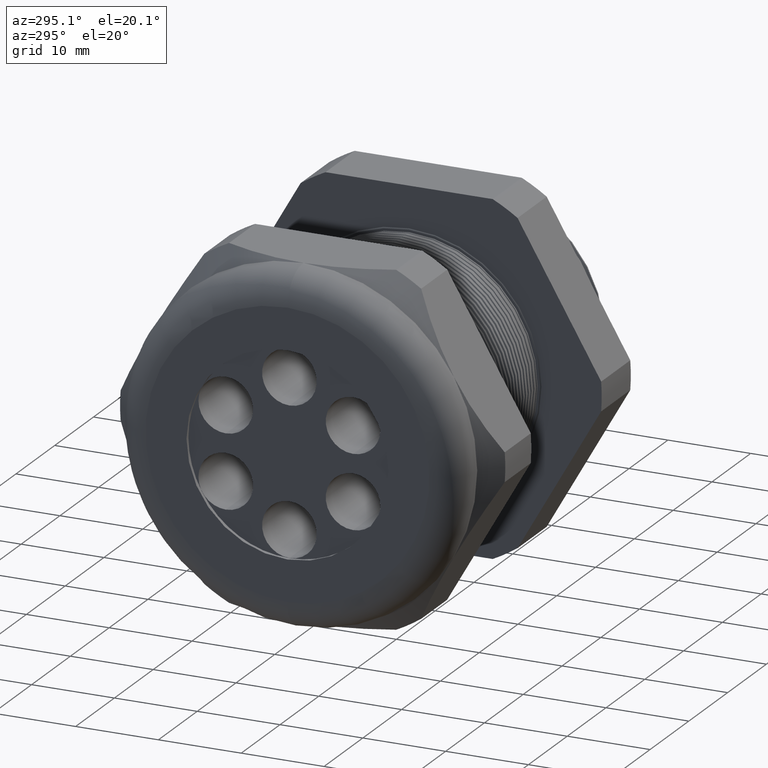
[diagram: clean part render]
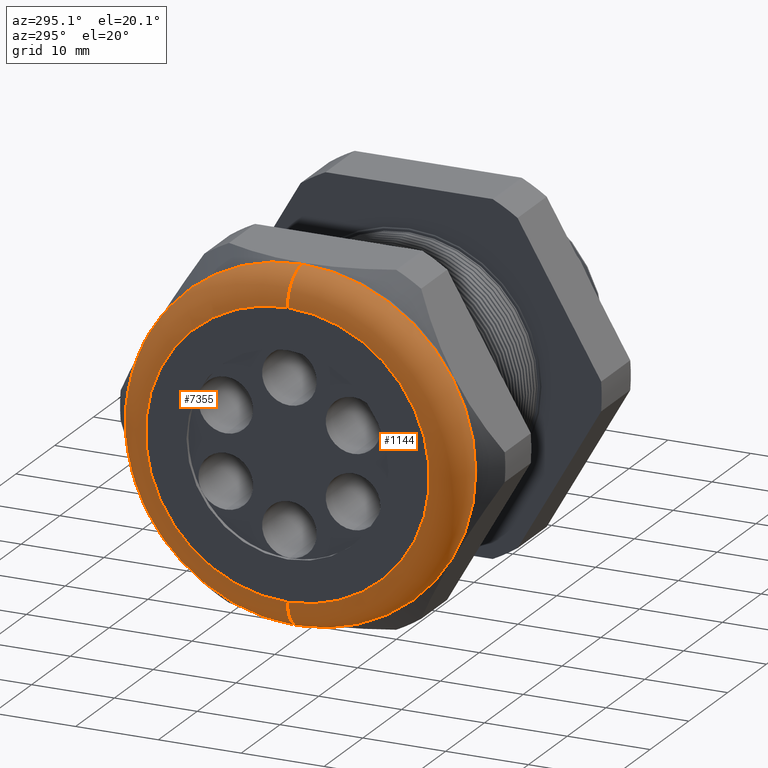
[diagram: same view with one multi-face feature highlighted, each face labeled with its STEP entity id]
A machine part, auxiliary view. The highlighted faces form ONE feature: a constant-radius fillet chain: 2 tangent blend faces with common blend radius 3.81 mm. The faces share edges in the B-rep.
Their STEP definitions:
[1] entity #7355 (Torus):
#6413 = DIRECTION ( 'NONE',  ( 0.0000000000000000000, 0.0000000000000000000, 1.000000000000000000 ) ) ;
#6414 = DIRECTION ( 'NONE',  ( -1.000000000000000000, 0.0000000000000000000, 0.0000000000000000000 ) ) ;
#6415 = CARTESIAN_POINT ( 'NONE',  ( -1.840000000000000100, 0.0000000000000000000, 0.0000000000000000000 ) ) ;
#6416 = AXIS2_PLACEMENT_3D ( 'NONE', #6415, #6414, #6413 ) ;
#6417 = CIRCLE ( 'NONE', #6416, 0.6749999999999997100 ) ;
#6418 = CARTESIAN_POINT ( 'NONE',  ( -1.840000000000000100, 0.0000000000000000000, 0.6749999999999997100 ) ) ;
#6419 = CARTESIAN_POINT ( 'NONE',  ( -1.840000000000000100, 9.184850993605146000E-017, -0.6749999999999997100 ) ) ;
#6429 = DIRECTION ( 'NONE',  ( 0.0000000000000000000, 0.0000000000000000000, 1.000000000000000000 ) ) ;
#6430 = DIRECTION ( 'NONE',  ( -1.000000000000000000, 0.0000000000000000000, 0.0000000000000000000 ) ) ;
#6431 = CARTESIAN_POINT ( 'NONE',  ( -1.689999999999999900, 0.0000000000000000000, 0.0000000000000000000 ) ) ;
#6432 = AXIS2_PLACEMENT_3D ( 'NONE', #6431, #6430, #6429 ) ;
#6434 = TOROIDAL_SURFACE ( 'NONE', #6432, 0.6749999999999997100, 0.1499999999999999900 ) ;
#6435 = FACE_OUTER_BOUND ( 'NONE', #7354, .T. ) ;
#6436 = DIRECTION ( 'NONE',  ( 0.0000000000000000000, -1.224646799147353200E-016, 1.000000000000000000 ) ) ;
#6437 = DIRECTION ( 'NONE',  ( 0.0000000000000000000, 1.000000000000000000, 1.224646799147353200E-016 ) ) ;
#6438 = AXIS2_PLACEMENT_3D ( 'NONE', #6445, #6437, #6436 ) ;
#6439 = CIRCLE ( 'NONE', #6438, 0.1499999999999999700 ) ;
#6440 = DIRECTION ( 'NONE',  ( 0.0000000000000000000, 0.0000000000000000000, 1.000000000000000000 ) ) ;
#6441 = DIRECTION ( 'NONE',  ( 1.000000000000000000, 0.0000000000000000000, 0.0000000000000000000 ) ) ;
#6442 = CARTESIAN_POINT ( 'NONE',  ( -1.689999999999999900, 0.0000000000000000000, 0.0000000000000000000 ) ) ;
#6443 = AXIS2_PLACEMENT_3D ( 'NONE', #6442, #6441, #6440 ) ;
#6444 = CIRCLE ( 'NONE', #6443, 0.8249999999999998400 ) ;
#6445 = CARTESIAN_POINT ( 'NONE',  ( -1.689999999999999900, 8.266365894244631900E-017, -0.6749999999999997100 ) ) ;
#6446 = CARTESIAN_POINT ( 'NONE',  ( -1.689999999999999900, 1.010333609296566100E-016, 0.8249999999999998400 ) ) ;
#6447 = CARTESIAN_POINT ( 'NONE',  ( -1.689999999999999900, 0.0000000000000000000, -0.8249999999999998400 ) ) ;
#6468 = DIRECTION ( 'NONE',  ( 0.0000000000000000000, 0.0000000000000000000, -1.000000000000000000 ) ) ;
#6469 = DIRECTION ( 'NONE',  ( 0.0000000000000000000, -1.000000000000000000, 0.0000000000000000000 ) ) ;
#6470 = CARTESIAN_POINT ( 'NONE',  ( -1.689999999999999900, 0.0000000000000000000, 0.6749999999999997100 ) ) ;
#6471 = AXIS2_PLACEMENT_3D ( 'NONE', #6470, #6469, #6468 ) ;
#6472 = CIRCLE ( 'NONE', #6471, 0.1499999999999999700 ) ;
#7329 = ORIENTED_EDGE ( 'NONE', *, *, #7333, .F. ) ;
#7330 = ORIENTED_EDGE ( 'NONE', *, *, #7374, .F. ) ;
#7331 = VERTEX_POINT ( 'NONE', #6419 ) ;
#7332 = VERTEX_POINT ( 'NONE', #6418 ) ;
#7333 = EDGE_CURVE ( 'NONE', #7332, #7331, #6417, .T. ) ;
#7348 = VERTEX_POINT ( 'NONE', #6447 ) ;
#7349 = VERTEX_POINT ( 'NONE', #6446 ) ;
#7350 = EDGE_CURVE ( 'NONE', #7348, #7349, #6444, .T. ) ;
#7351 = ORIENTED_EDGE ( 'NONE', *, *, #7352, .T. ) ;
#7352 = EDGE_CURVE ( 'NONE', #7348, #7331, #6439, .T. ) ;
#7353 = ORIENTED_EDGE ( 'NONE', *, *, #7350, .F. ) ;
#7354 = EDGE_LOOP ( 'NONE', ( #7353, #7351, #7329, #7330 ) ) ;
#7355 = ADVANCED_FACE ( 'NONE', ( #6435 ), #6434, .T. ) ;
#7374 = EDGE_CURVE ( 'NONE', #7349, #7332, #6472, .T. ) ;
[2] entity #1144 (Torus):
#1021 = EDGE_CURVE ( 'NONE', #7349, #7348, #4124, .T. ) ;
#1039 = EDGE_CURVE ( 'NONE', #7331, #7332, #4151, .T. ) ;
#1144 = ADVANCED_FACE ( 'NONE', ( #4270 ), #4269, .T. ) ;
#1145 = EDGE_LOOP ( 'NONE', ( #1146, #1147, #1148, #1149 ) ) ;
#1146 = ORIENTED_EDGE ( 'NONE', *, *, #7352, .F. ) ;
#1147 = ORIENTED_EDGE ( 'NONE', *, *, #1021, .F. ) ;
#1148 = ORIENTED_EDGE ( 'NONE', *, *, #7374, .T. ) ;
#1149 = ORIENTED_EDGE ( 'NONE', *, *, #1039, .F. ) ;
#4120 = DIRECTION ( 'NONE',  ( 0.0000000000000000000, 0.0000000000000000000, 1.000000000000000000 ) ) ;
#4121 = DIRECTION ( 'NONE',  ( 1.000000000000000000, 0.0000000000000000000, 0.0000000000000000000 ) ) ;
#4122 = CARTESIAN_POINT ( 'NONE',  ( -1.689999999999999900, 0.0000000000000000000, 0.0000000000000000000 ) ) ;
#4123 = AXIS2_PLACEMENT_3D ( 'NONE', #4122, #4121, #4120 ) ;
#4124 = CIRCLE ( 'NONE', #4123, 0.8249999999999998400 ) ;
#4147 = DIRECTION ( 'NONE',  ( 0.0000000000000000000, 0.0000000000000000000, 1.000000000000000000 ) ) ;
#4148 = DIRECTION ( 'NONE',  ( -1.000000000000000000, 0.0000000000000000000, 0.0000000000000000000 ) ) ;
#4149 = CARTESIAN_POINT ( 'NONE',  ( -1.840000000000000100, 0.0000000000000000000, 0.0000000000000000000 ) ) ;
#4150 = AXIS2_PLACEMENT_3D ( 'NONE', #4149, #4148, #4147 ) ;
#4151 = CIRCLE ( 'NONE', #4150, 0.6749999999999997100 ) ;
#4266 = DIRECTION ( 'NONE',  ( 0.0000000000000000000, 0.0000000000000000000, 1.000000000000000000 ) ) ;
#4267 = DIRECTION ( 'NONE',  ( -1.000000000000000000, 0.0000000000000000000, 0.0000000000000000000 ) ) ;
#4268 = AXIS2_PLACEMENT_3D ( 'NONE', #4274, #4267, #4266 ) ;
#4269 = TOROIDAL_SURFACE ( 'NONE', #4268, 0.6749999999999997100, 0.1499999999999999900 ) ;
#4270 = FACE_OUTER_BOUND ( 'NONE', #1145, .T. ) ;
#4274 = CARTESIAN_POINT ( 'NONE',  ( -1.689999999999999900, 0.0000000000000000000, 0.0000000000000000000 ) ) ;
#6418 = CARTESIAN_POINT ( 'NONE',  ( -1.840000000000000100, 0.0000000000000000000, 0.6749999999999997100 ) ) ;
#6419 = CARTESIAN_POINT ( 'NONE',  ( -1.840000000000000100, 9.184850993605146000E-017, -0.6749999999999997100 ) ) ;
#6436 = DIRECTION ( 'NONE',  ( 0.0000000000000000000, -1.224646799147353200E-016, 1.000000000000000000 ) ) ;
#6437 = DIRECTION ( 'NONE',  ( 0.0000000000000000000, 1.000000000000000000, 1.224646799147353200E-016 ) ) ;
#6438 = AXIS2_PLACEMENT_3D ( 'NONE', #6445, #6437, #6436 ) ;
#6439 = CIRCLE ( 'NONE', #6438, 0.1499999999999999700 ) ;
#6445 = CARTESIAN_POINT ( 'NONE',  ( -1.689999999999999900, 8.266365894244631900E-017, -0.6749999999999997100 ) ) ;
#6446 = CARTESIAN_POINT ( 'NONE',  ( -1.689999999999999900, 1.010333609296566100E-016, 0.8249999999999998400 ) ) ;
#6447 = CARTESIAN_POINT ( 'NONE',  ( -1.689999999999999900, 0.0000000000000000000, -0.8249999999999998400 ) ) ;
#6468 = DIRECTION ( 'NONE',  ( 0.0000000000000000000, 0.0000000000000000000, -1.000000000000000000 ) ) ;
#6469 = DIRECTION ( 'NONE',  ( 0.0000000000000000000, -1.000000000000000000, 0.0000000000000000000 ) ) ;
#6470 = CARTESIAN_POINT ( 'NONE',  ( -1.689999999999999900, 0.0000000000000000000, 0.6749999999999997100 ) ) ;
#6471 = AXIS2_PLACEMENT_3D ( 'NONE', #6470, #6469, #6468 ) ;
#6472 = CIRCLE ( 'NONE', #6471, 0.1499999999999999700 ) ;
#7331 = VERTEX_POINT ( 'NONE', #6419 ) ;
#7332 = VERTEX_POINT ( 'NONE', #6418 ) ;
#7348 = VERTEX_POINT ( 'NONE', #6447 ) ;
#7349 = VERTEX_POINT ( 'NONE', #6446 ) ;
#7352 = EDGE_CURVE ( 'NONE', #7348, #7331, #6439, .T. ) ;
#7374 = EDGE_CURVE ( 'NONE', #7349, #7332, #6472, .T. ) ;